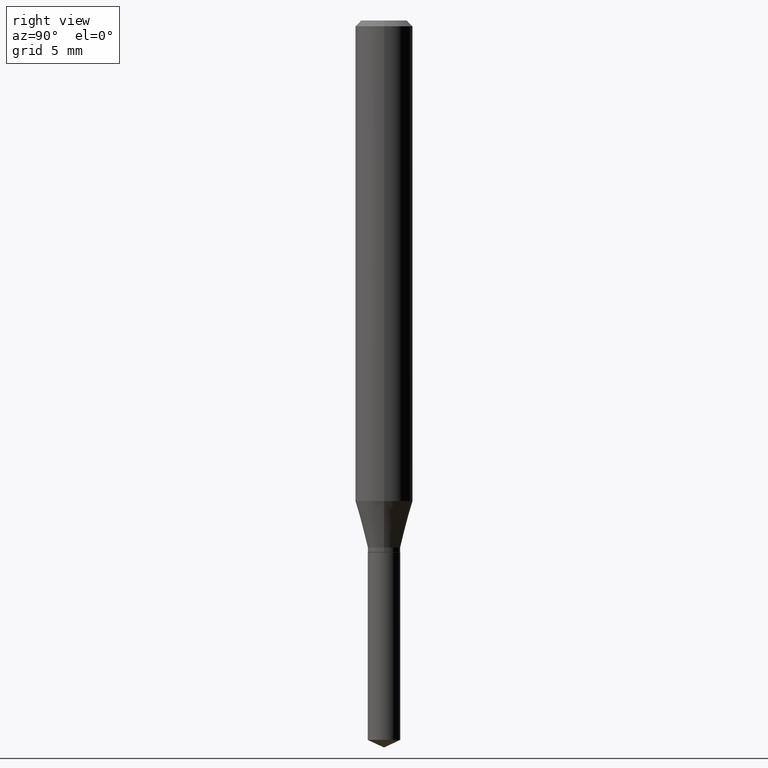
[diagram: clean part render]
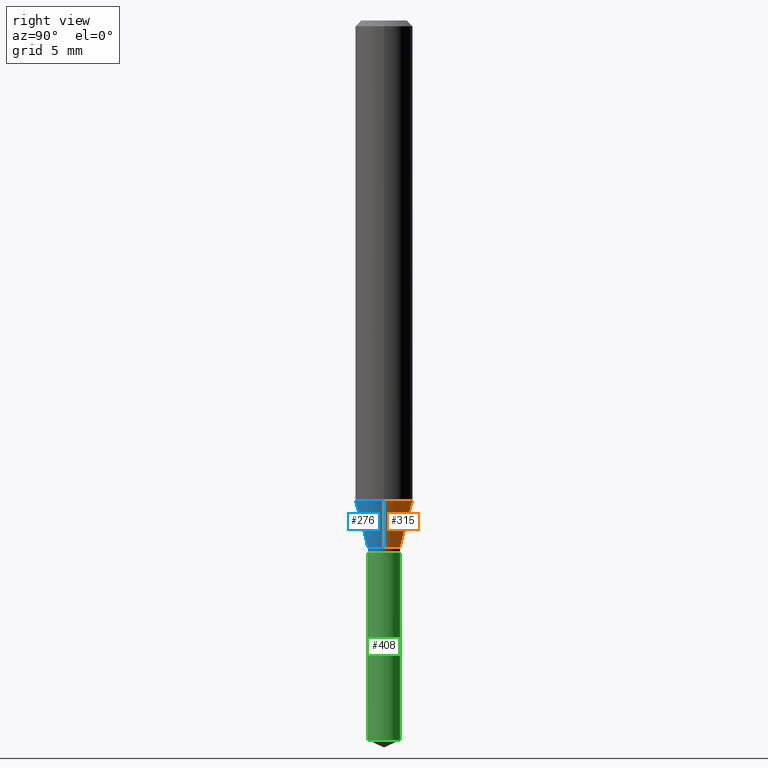
[diagram: same view with three faces highlighted in distinct colors, each labeled with its STEP entity id]
A machine part, right view with three faces highlighted in distinct colors.
Their STEP definitions:

[orange] entity #315 — the highlighted conical surface has half-angle 15 deg.
#16 = DIRECTION ( 'NONE',  ( -0.2588190451025213501, 5.211531920934551042E-15, 0.9659258262890682012 ) ) ;
#35 = CARTESIAN_POINT ( 'NONE',  ( 0.03344999999999998669, -4.020091613543996190E-15, -1.084499999999999797 ) ) ;
#42 = VERTEX_POINT ( 'NONE', #202 ) ;
#63 = FACE_OUTER_BOUND ( 'NONE', #373, .T. ) ;
#78 = EDGE_CURVE ( 'NONE', #271, #341, #357, .T. ) ;
#101 = CONICAL_SURFACE ( 'NONE', #263, 0.03344999999999998669, 0.2617993877991500740 ) ;
#105 = DIRECTION ( 'NONE',  ( 1.000000000000000000, -6.982962677686267499E-15, 0.000000000000000000 ) ) ;
#106 = ORIENTED_EDGE ( 'NONE', *, *, #134, .F. ) ;
#110 = ORIENTED_EDGE ( 'NONE', *, *, #447, .T. ) ;
#121 = LINE ( 'NONE', #122, #174 ) ;
#122 = CARTESIAN_POINT ( 'NONE',  ( 0.03344999999999998669, -4.020091613543996190E-15, -1.084499999999999797 ) ) ;
#134 = EDGE_CURVE ( 'NONE', #438, #42, #121, .T. ) ;
#135 = AXIS2_PLACEMENT_3D ( 'NONE', #481, #338, #105 ) ;
#140 = CARTESIAN_POINT ( 'NONE',  ( 2.652110920307780249E-29, -3.786511511975391124E-15, -1.084499999999999797 ) ) ;
#151 = ORIENTED_EDGE ( 'NONE', *, *, #78, .T. ) ;
#158 = EDGE_CURVE ( 'NONE', #42, #341, #166, .T. ) ;
#166 = CIRCLE ( 'NONE', #407, 0.05905000000000011628 ) ;
#174 = VECTOR ( 'NONE', #462, 39.37007874015747433 ) ;
#202 = CARTESIAN_POINT ( 'NONE',  ( 0.05905000000000011628, -3.865277582886589578E-15, -0.9889594993262362799 ) ) ;
#211 = DIRECTION ( 'NONE',  ( 1.000000000000000000, -6.982962677686267499E-15, 0.000000000000000000 ) ) ;
#243 = CARTESIAN_POINT ( 'NONE',  ( 2.418469606182781541E-29, -3.452933636769214658E-15, -0.9889594993262362799 ) ) ;
#263 = AXIS2_PLACEMENT_3D ( 'NONE', #140, #399, #211 ) ;
#271 = VERTEX_POINT ( 'NONE', #326 ) ;
#285 = CARTESIAN_POINT ( 'NONE',  ( -0.03344999999999998669, -3.548834966863637756E-15, -1.084499999999999797 ) ) ;
#315 = ADVANCED_FACE ( 'NONE', ( #63 ), #101, .T. ) ;
#326 = CARTESIAN_POINT ( 'NONE',  ( -0.03344999999999998669, -3.565419503223142434E-15, -1.084499999999999797 ) ) ;
#338 = DIRECTION ( 'NONE',  ( -2.445468806185136597E-29, 3.491481338843145583E-15, 1.000000000000000000 ) ) ;
#341 = VERTEX_POINT ( 'NONE', #439 ) ;
#348 = CIRCLE ( 'NONE', #135, 0.03344999999999998669 ) ;
#354 = DIRECTION ( 'NONE',  ( -2.445468806185136597E-29, 3.491481338843145583E-15, 1.000000000000000000 ) ) ;
#357 = LINE ( 'NONE', #285, #434 ) ;
#373 = EDGE_LOOP ( 'NONE', ( #110, #151, #415, #106 ) ) ;
#388 = DIRECTION ( 'NONE',  ( 1.000000000000000000, -6.982962677686266711E-15, 0.000000000000000000 ) ) ;
#399 = DIRECTION ( 'NONE',  ( -2.445468806185136597E-29, 3.491481338843145583E-15, 1.000000000000000000 ) ) ;
#407 = AXIS2_PLACEMENT_3D ( 'NONE', #243, #354, #388 ) ;
#415 = ORIENTED_EDGE ( 'NONE', *, *, #158, .F. ) ;
#434 = VECTOR ( 'NONE', #16, 39.37007874015747433 ) ;
#438 = VERTEX_POINT ( 'NONE', #35 ) ;
#439 = CARTESIAN_POINT ( 'NONE',  ( -0.05905000000000011628, -3.033358151302874771E-15, -0.9889594993262362799 ) ) ;
#447 = EDGE_CURVE ( 'NONE', #438, #271, #348, .T. ) ;
#462 = DIRECTION ( 'NONE',  ( 0.2588190451025213501, 1.565188264969621968E-15, 0.9659258262890682012 ) ) ;
#481 = CARTESIAN_POINT ( 'NONE',  ( 2.652110920307780249E-29, -3.786511511975391124E-15, -1.084499999999999797 ) ) ;

[blue] entity #276 — the highlighted conical surface has half-angle 15 deg.
#13 = AXIS2_PLACEMENT_3D ( 'NONE', #478, #104, #296 ) ;
#16 = DIRECTION ( 'NONE',  ( -0.2588190451025213501, 5.211531920934551042E-15, 0.9659258262890682012 ) ) ;
#18 = CARTESIAN_POINT ( 'NONE',  ( 2.652110920307780249E-29, -3.786511511975391124E-15, -1.084499999999999797 ) ) ;
#23 = CONICAL_SURFACE ( 'NONE', #13, 0.03344999999999998669, 0.2617993877991500740 ) ;
#35 = CARTESIAN_POINT ( 'NONE',  ( 0.03344999999999998669, -4.020091613543996190E-15, -1.084499999999999797 ) ) ;
#42 = VERTEX_POINT ( 'NONE', #202 ) ;
#78 = EDGE_CURVE ( 'NONE', #271, #341, #357, .T. ) ;
#96 = CARTESIAN_POINT ( 'NONE',  ( 2.418469606182781541E-29, -3.452933636769214658E-15, -0.9889594993262362799 ) ) ;
#99 = EDGE_CURVE ( 'NONE', #271, #438, #126, .T. ) ;
#104 = DIRECTION ( 'NONE',  ( -2.445468806185136597E-29, 3.491481338843145583E-15, 1.000000000000000000 ) ) ;
#120 = ORIENTED_EDGE ( 'NONE', *, *, #78, .F. ) ;
#121 = LINE ( 'NONE', #122, #174 ) ;
#122 = CARTESIAN_POINT ( 'NONE',  ( 0.03344999999999998669, -4.020091613543996190E-15, -1.084499999999999797 ) ) ;
#126 = CIRCLE ( 'NONE', #249, 0.03344999999999998669 ) ;
#134 = EDGE_CURVE ( 'NONE', #438, #42, #121, .T. ) ;
#148 = AXIS2_PLACEMENT_3D ( 'NONE', #96, #293, #170 ) ;
#170 = DIRECTION ( 'NONE',  ( 1.000000000000000000, -6.982962677686266711E-15, 0.000000000000000000 ) ) ;
#174 = VECTOR ( 'NONE', #462, 39.37007874015747433 ) ;
#188 = ORIENTED_EDGE ( 'NONE', *, *, #134, .T. ) ;
#202 = CARTESIAN_POINT ( 'NONE',  ( 0.05905000000000011628, -3.865277582886589578E-15, -0.9889594993262362799 ) ) ;
#232 = ORIENTED_EDGE ( 'NONE', *, *, #325, .F. ) ;
#249 = AXIS2_PLACEMENT_3D ( 'NONE', #18, #310, #282 ) ;
#271 = VERTEX_POINT ( 'NONE', #326 ) ;
#276 = ADVANCED_FACE ( 'NONE', ( #435 ), #23, .T. ) ;
#282 = DIRECTION ( 'NONE',  ( 1.000000000000000000, -6.982962677686267499E-15, 0.000000000000000000 ) ) ;
#285 = CARTESIAN_POINT ( 'NONE',  ( -0.03344999999999998669, -3.548834966863637756E-15, -1.084499999999999797 ) ) ;
#293 = DIRECTION ( 'NONE',  ( -2.445468806185136597E-29, 3.491481338843145583E-15, 1.000000000000000000 ) ) ;
#296 = DIRECTION ( 'NONE',  ( 1.000000000000000000, -6.982962677686267499E-15, 0.000000000000000000 ) ) ;
#310 = DIRECTION ( 'NONE',  ( -2.445468806185136597E-29, 3.491481338843145583E-15, 1.000000000000000000 ) ) ;
#320 = ORIENTED_EDGE ( 'NONE', *, *, #99, .T. ) ;
#325 = EDGE_CURVE ( 'NONE', #341, #42, #332, .T. ) ;
#326 = CARTESIAN_POINT ( 'NONE',  ( -0.03344999999999998669, -3.565419503223142434E-15, -1.084499999999999797 ) ) ;
#332 = CIRCLE ( 'NONE', #148, 0.05905000000000011628 ) ;
#341 = VERTEX_POINT ( 'NONE', #439 ) ;
#357 = LINE ( 'NONE', #285, #434 ) ;
#375 = EDGE_LOOP ( 'NONE', ( #120, #320, #188, #232 ) ) ;
#434 = VECTOR ( 'NONE', #16, 39.37007874015747433 ) ;
#435 = FACE_OUTER_BOUND ( 'NONE', #375, .T. ) ;
#438 = VERTEX_POINT ( 'NONE', #35 ) ;
#439 = CARTESIAN_POINT ( 'NONE',  ( -0.05905000000000011628, -3.033358151302874771E-15, -0.9889594993262362799 ) ) ;
#462 = DIRECTION ( 'NONE',  ( 0.2588190451025213501, 1.565188264969621968E-15, 0.9659258262890682012 ) ) ;
#478 = CARTESIAN_POINT ( 'NONE',  ( 2.652110920307780249E-29, -3.786511511975391124E-15, -1.084499999999999797 ) ) ;

[green] entity #408 — the highlighted cylindrical surface (edge-blend (fillet) strip) has radius 0.8496 mm, axis along (-0, 0, 1).
#29 = DIRECTION ( 'NONE',  ( -2.445402730703145379E-29, 3.491575962694140016E-15, 1.000000000000000000 ) ) ;
#71 = VECTOR ( 'NONE', #273, 39.37007874015748143 ) ;
#75 = CYLINDRICAL_SURFACE ( 'NONE', #156, 0.03345000000000000057 ) ;
#82 = CARTESIAN_POINT ( 'NONE',  ( 2.676565608369631794E-29, -3.821426325363822773E-15, -1.094499999999999806 ) ) ;
#97 = LINE ( 'NONE', #433, #264 ) ;
#116 = ORIENTED_EDGE ( 'NONE', *, *, #176, .T. ) ;
#117 = EDGE_CURVE ( 'NONE', #268, #483, #289, .T. ) ;
#119 = CIRCLE ( 'NONE', #181, 0.03345000000000000057 ) ;
#154 = FACE_OUTER_BOUND ( 'NONE', #486, .T. ) ;
#156 = AXIS2_PLACEMENT_3D ( 'NONE', #82, #222, #298 ) ;
#176 = EDGE_CURVE ( 'NONE', #234, #483, #97, .T. ) ;
#181 = AXIS2_PLACEMENT_3D ( 'NONE', #333, #340, #187 ) ;
#187 = DIRECTION ( 'NONE',  ( -6.982962677686264344E-15, -1.000000000000000000, 0.000000000000000000 ) ) ;
#217 = ORIENTED_EDGE ( 'NONE', *, *, #117, .F. ) ;
#222 = DIRECTION ( 'NONE',  ( -2.445402730703145379E-29, 3.491575962694140016E-15, 1.000000000000000000 ) ) ;
#234 = VERTEX_POINT ( 'NONE', #331 ) ;
#264 = VECTOR ( 'NONE', #29, 39.37007874015748143 ) ;
#268 = VERTEX_POINT ( 'NONE', #403 ) ;
#273 = DIRECTION ( 'NONE',  ( -2.445402730703145379E-29, 3.491575962694140016E-15, 1.000000000000000000 ) ) ;
#289 = CIRCLE ( 'NONE', #385, 0.03345000000000000057 ) ;
#298 = DIRECTION ( 'NONE',  ( -6.982962677686264344E-15, -1.000000000000000000, 4.083479811157344024E-15 ) ) ;
#303 = CARTESIAN_POINT ( 'NONE',  ( 2.376765451117897545E-16, 0.03344999999999617724, -1.094500000000000028 ) ) ;
#312 = CARTESIAN_POINT ( 'NONE',  ( 2.676565608369631794E-29, -3.821426325363822773E-15, -1.094499999999999806 ) ) ;
#314 = DIRECTION ( 'NONE',  ( -6.982962677686264344E-15, -1.000000000000000000, 4.083479811157344024E-15 ) ) ;
#331 = CARTESIAN_POINT ( 'NONE',  ( 2.376765451117897052E-16, 0.03344999999999482415, -1.480502008834715610 ) ) ;
#333 = CARTESIAN_POINT ( 'NONE',  ( 3.620495974830945806E-29, -5.169181660962767472E-15, -1.480502008834715610 ) ) ;
#340 = DIRECTION ( 'NONE',  ( -2.445402730703145379E-29, 3.491575962694140016E-15, 1.000000000000000000 ) ) ;
#346 = ORIENTED_EDGE ( 'NONE', *, *, #414, .F. ) ;
#368 = CARTESIAN_POINT ( 'NONE',  ( -2.335801015685693209E-16, -0.03345000000000517004, -1.480502008834715610 ) ) ;
#370 = CARTESIAN_POINT ( 'NONE',  ( -2.335801015685788365E-16, -0.03345000000000382390, -1.094499999999999806 ) ) ;
#385 = AXIS2_PLACEMENT_3D ( 'NONE', #312, #460, #314 ) ;
#403 = CARTESIAN_POINT ( 'NONE',  ( -2.335801015685788365E-16, -0.03345000000000382390, -1.094499999999999806 ) ) ;
#408 = ADVANCED_FACE ( 'NONE', ( #154 ), #75, .T. ) ;
#414 = EDGE_CURVE ( 'NONE', #451, #268, #448, .T. ) ;
#433 = CARTESIAN_POINT ( 'NONE',  ( 2.376765451117802389E-16, 0.03344999999999617724, -1.094500000000000028 ) ) ;
#446 = EDGE_CURVE ( 'NONE', #451, #234, #119, .T. ) ;
#448 = LINE ( 'NONE', #370, #71 ) ;
#451 = VERTEX_POINT ( 'NONE', #368 ) ;
#454 = ORIENTED_EDGE ( 'NONE', *, *, #446, .T. ) ;
#460 = DIRECTION ( 'NONE',  ( -2.445402730703145379E-29, 3.491575962694140016E-15, 1.000000000000000000 ) ) ;
#483 = VERTEX_POINT ( 'NONE', #303 ) ;
#486 = EDGE_LOOP ( 'NONE', ( #454, #116, #217, #346 ) ) ;